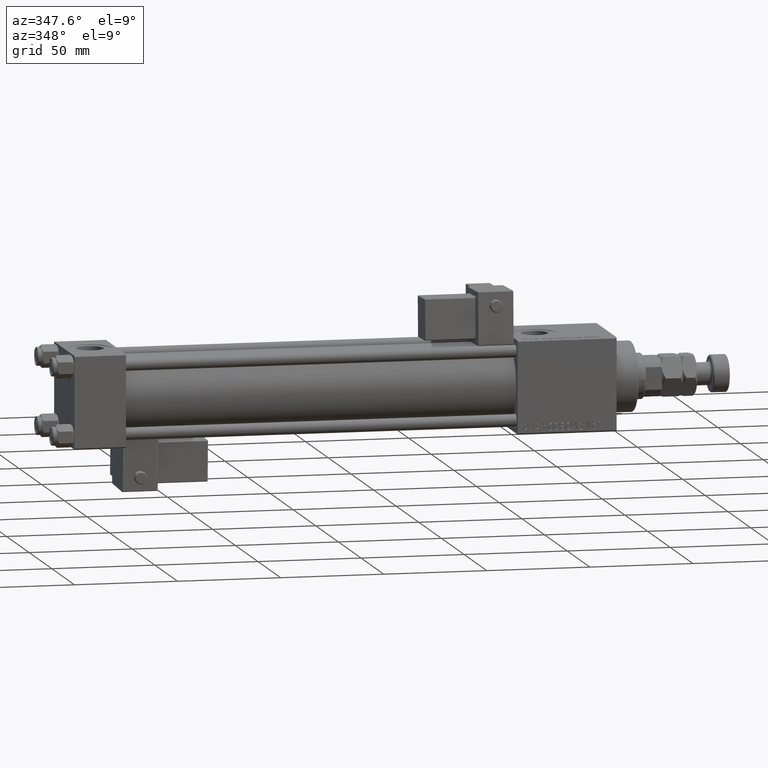
[diagram: clean part render]
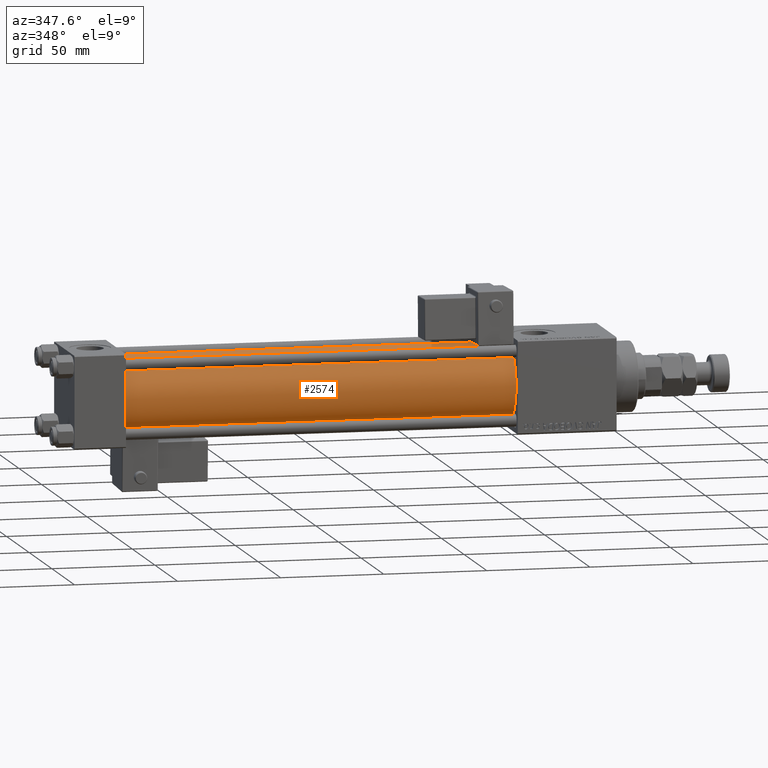
[diagram: same view with one face highlighted and labeled with its STEP entity id]
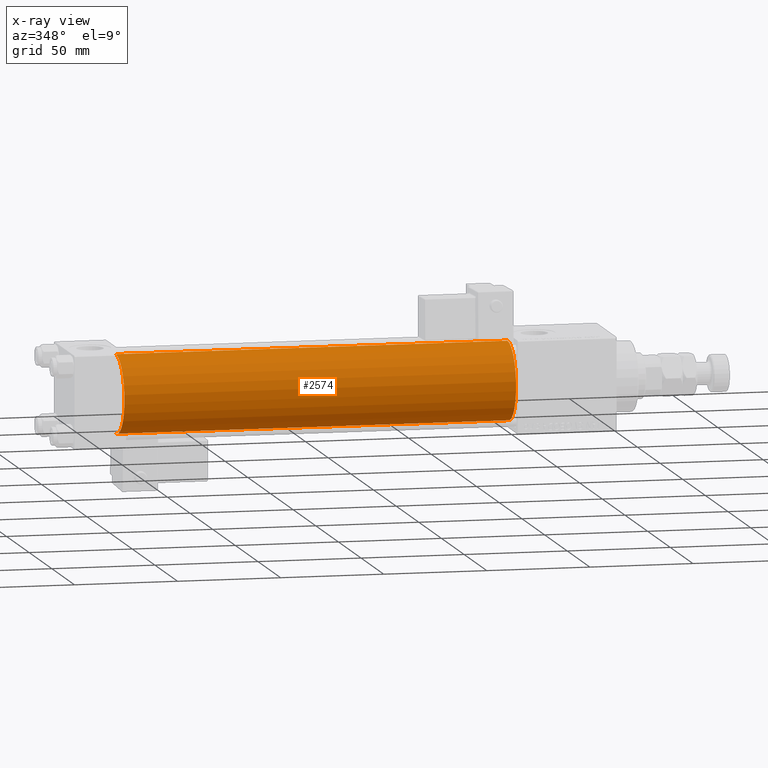
[diagram: x-ray of the same camera — body ghosted, the highlighted face saturated]
A machine part, auxiliary view. The second image highlights one B-rep face of the part: STEP entity #2574.
The next image is the same camera in x-ray: the body ghosted, the highlighted face saturated — about 0% of this face is hidden behind the body in this view.
In plain terms, the highlighted cylindrical surface (partial cylindrical patch) has radius 19 mm, axis along (-1, -0, -0).
Its self-contained STEP definition (entity closure, byte-faithful):
#827 = FACE_OUTER_BOUND ( 'NONE', #25950, .T. ) ;
#1100 = DIRECTION ( 'NONE',  ( -1.000000000000000000, -0.000000000000000000, -0.000000000000000000 ) ) ;
#2088 = CARTESIAN_POINT ( 'NONE',  ( 215.0000000000000000, -2.752562955852396712E-16, -19.00000000000000000 ) ) ;
#2574 = ADVANCED_FACE ( 'NONE', ( #827 ), #5489, .T. ) ;
#3901 = CIRCLE ( 'NONE', #48576, 19.00000000000000000 ) ;
#4511 = CARTESIAN_POINT ( 'NONE',  ( 24.99999999999999289, -2.602085213965210642E-15, 19.00000000000000000 ) ) ;
#5489 = CYLINDRICAL_SURFACE ( 'NONE', #24704, 19.00000000000000000 ) ;
#6557 = ORIENTED_EDGE ( 'NONE', *, *, #17612, .F. ) ;
#6594 = DIRECTION ( 'NONE',  ( 1.000000000000000000, 0.000000000000000000, 0.000000000000000000 ) ) ;
#6882 = CARTESIAN_POINT ( 'NONE',  ( 24.99999999999999289, -2.602085213965210642E-15, 0.000000000000000000 ) ) ;
#9074 = ORIENTED_EDGE ( 'NONE', *, *, #25032, .T. ) ;
#10163 = VECTOR ( 'NONE', #48156, 1000.000000000000000 ) ;
#10703 = CARTESIAN_POINT ( 'NONE',  ( 215.0000000000000000, -2.602085213965210642E-15, 0.000000000000000000 ) ) ;
#10854 = CARTESIAN_POINT ( 'NONE',  ( 215.0000000000000000, -2.602085213965210642E-15, 19.00000000000000000 ) ) ;
#11171 = LINE ( 'NONE', #44622, #29669 ) ;
#12570 = EDGE_CURVE ( 'NONE', #53139, #30861, #3901, .T. ) ;
#13982 = DIRECTION ( 'NONE',  ( 0.000000000000000000, 0.000000000000000000, 1.000000000000000000 ) ) ;
#17612 = EDGE_CURVE ( 'NONE', #19208, #38383, #52227, .T. ) ;
#18113 = CARTESIAN_POINT ( 'NONE',  ( 215.0000000000000000, -2.602085213965210642E-15, 0.000000000000000000 ) ) ;
#19208 = VERTEX_POINT ( 'NONE', #10854 ) ;
#23612 = DIRECTION ( 'NONE',  ( 1.000000000000000000, -0.000000000000000000, 0.000000000000000000 ) ) ;
#24704 = AXIS2_PLACEMENT_3D ( 'NONE', #18113, #1100, #13982 ) ;
#25032 = EDGE_CURVE ( 'NONE', #19208, #53139, #11171, .T. ) ;
#25455 = ORIENTED_EDGE ( 'NONE', *, *, #12570, .T. ) ;
#25950 = EDGE_LOOP ( 'NONE', ( #26317, #6557, #9074, #25455 ) ) ;
#26317 = ORIENTED_EDGE ( 'NONE', *, *, #43144, .F. ) ;
#28248 = DIRECTION ( 'NONE',  ( 0.000000000000000000, 0.000000000000000000, -1.000000000000000000 ) ) ;
#28704 = CARTESIAN_POINT ( 'NONE',  ( 24.99999999999999289, -2.752562955852396712E-16, -19.00000000000000000 ) ) ;
#29669 = VECTOR ( 'NONE', #40504, 1000.000000000000000 ) ;
#30861 = VERTEX_POINT ( 'NONE', #28704 ) ;
#33799 = AXIS2_PLACEMENT_3D ( 'NONE', #10703, #6594, #28248 ) ;
#35131 = DIRECTION ( 'NONE',  ( 0.000000000000000000, 0.000000000000000000, 1.000000000000000000 ) ) ;
#35394 = CARTESIAN_POINT ( 'NONE',  ( 215.0000000000000000, -2.752562955852396712E-16, -19.00000000000000000 ) ) ;
#38383 = VERTEX_POINT ( 'NONE', #35394 ) ;
#39654 = LINE ( 'NONE', #2088, #10163 ) ;
#40504 = DIRECTION ( 'NONE',  ( -1.000000000000000000, -0.000000000000000000, -0.000000000000000000 ) ) ;
#43144 = EDGE_CURVE ( 'NONE', #38383, #30861, #39654, .T. ) ;
#44622 = CARTESIAN_POINT ( 'NONE',  ( 215.0000000000000000, -2.602085213965210642E-15, 19.00000000000000000 ) ) ;
#48156 = DIRECTION ( 'NONE',  ( -1.000000000000000000, -0.000000000000000000, -0.000000000000000000 ) ) ;
#48576 = AXIS2_PLACEMENT_3D ( 'NONE', #6882, #23612, #35131 ) ;
#52227 = CIRCLE ( 'NONE', #33799, 19.00000000000000000 ) ;
#53139 = VERTEX_POINT ( 'NONE', #4511 ) ;